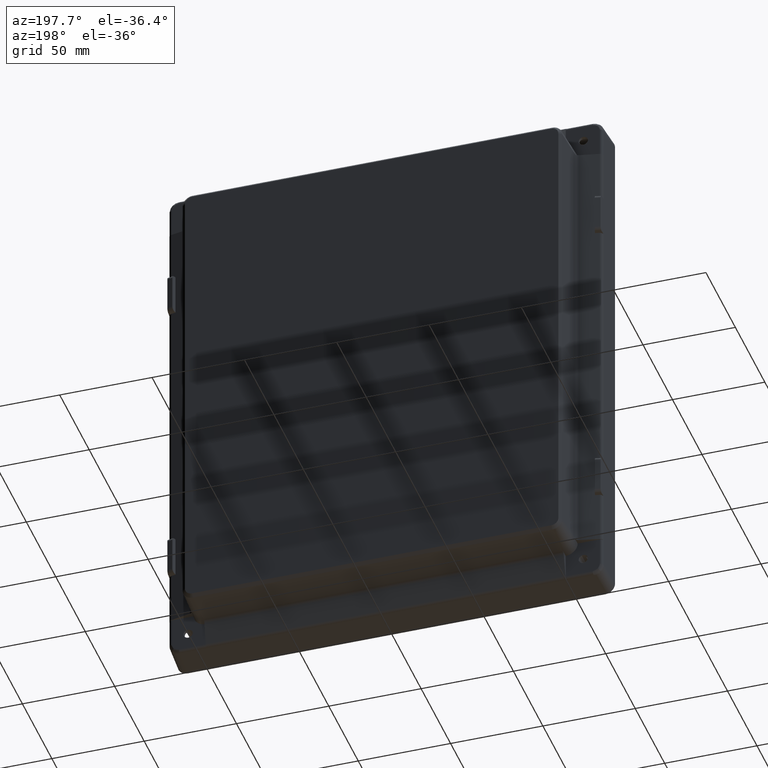
[diagram: clean part render]
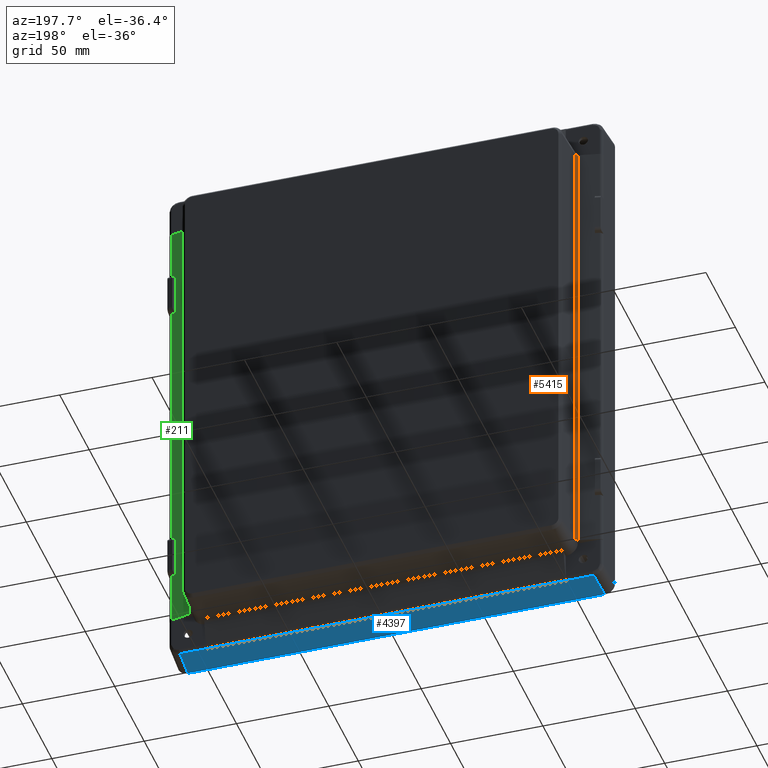
[diagram: same view with three faces highlighted in distinct colors, each labeled with its STEP entity id]
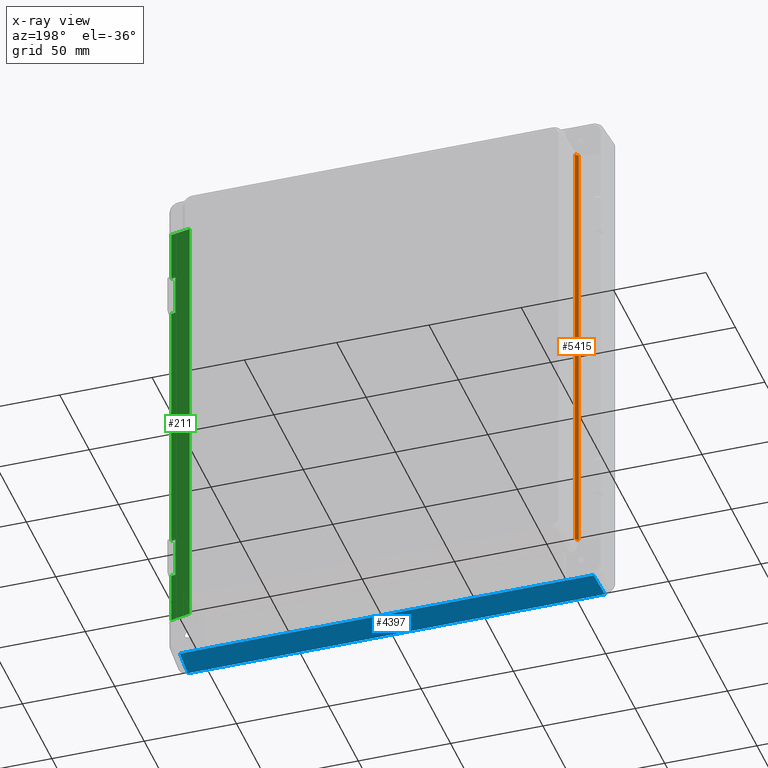
[diagram: x-ray of the same camera — body ghosted, the three highlighted faces saturated]
A machine part, auxiliary view with three faces highlighted in distinct colors.
The next image is the same camera in x-ray (body ghosted, the three faces saturated) — at least one of them is partly hidden behind the body in this view.
Their STEP definitions:

[orange] entity #5415 — the highlighted cylindrical surface (edge-blend (fillet) strip) has radius 2 mm, axis along (0, -0, 1).
#178 = VERTEX_POINT ( 'NONE', #1561 ) ;
#285 = ORIENTED_EDGE ( 'NONE', *, *, #5817, .F. ) ;
#333 = CARTESIAN_POINT ( 'NONE',  ( -105.3249613760728200, 12.58276645524500000, 123.3309053461729000 ) ) ;
#348 = CARTESIAN_POINT ( 'NONE',  ( -103.7927931397431100, 13.49431076706087400, 123.2831333330725000 ) ) ;
#525 = DIRECTION ( 'NONE',  ( -1.048359647488374200E-016, 2.875979223371249300E-017, -1.000000000000000000 ) ) ;
#706 = EDGE_CURVE ( 'NONE', #4485, #178, #888, .T. ) ;
#721 = DIRECTION ( 'NONE',  ( 1.000000000000000000, 0.0000000000000000000, 0.0000000000000000000 ) ) ;
#834 = CARTESIAN_POINT ( 'NONE',  ( -104.4041634585136800, 12.77848809459428600, 123.3206480096969200 ) ) ;
#888 = LINE ( 'NONE', #5679, #956 ) ;
#956 = VECTOR ( 'NONE', #2662, 1000.000000000000000 ) ;
#1227 = EDGE_LOOP ( 'NONE', ( #2887, #4920, #285, #1296 ) ) ;
#1296 = ORIENTED_EDGE ( 'NONE', *, *, #706, .F. ) ;
#1367 = CARTESIAN_POINT ( 'NONE',  ( -105.3249613760728200, 12.58276645524500000, 123.3309053461729000 ) ) ;
#1561 = CARTESIAN_POINT ( 'NONE',  ( -103.7435256881991800, 14.43438974422672600, 123.2338658815286000 ) ) ;
#1596 = AXIS2_PLACEMENT_3D ( 'NONE', #5856, #6327, #721 ) ;
#1649 = LINE ( 'NONE', #5708, #4964 ) ;
#1759 = CARTESIAN_POINT ( 'NONE',  ( -103.7435256881992100, 14.43438974422673300, -123.2338658815285700 ) ) ;
#1894 = FACE_OUTER_BOUND ( 'NONE', #1227, .T. ) ;
#2662 = DIRECTION ( 'NONE',  ( 1.048359647488374200E-016, -2.875979223371249300E-017, 1.000000000000000000 ) ) ;
#2887 = ORIENTED_EDGE ( 'NONE', *, *, #4891, .F. ) ;
#2919 =( BOUNDED_CURVE ( )  B_SPLINE_CURVE ( 3, ( #3158, #5246, #6238, #6734 ),
 .UNSPECIFIED., .F., .F. ) 
 B_SPLINE_CURVE_WITH_KNOTS ( ( 4, 4 ),
 ( 3.351032163829110300, 4.660029102824862200 ),
 .UNSPECIFIED. ) 
 CURVE ( )  GEOMETRIC_REPRESENTATION_ITEM ( )  RATIONAL_B_SPLINE_CURVE ( ( 1.000000000000000000, 0.8622355601941557000, 0.8622355601941557000, 1.000000000000000000 ) ) 
 REPRESENTATION_ITEM ( '' )  );
#3158 = CARTESIAN_POINT ( 'NONE',  ( -105.3249613760728500, 12.58276645524500700, -123.3309053461728700 ) ) ;
#3595 = EDGE_CURVE ( 'NONE', #4754, #3718, #1649, .T. ) ;
#3718 = VERTEX_POINT ( 'NONE', #6208 ) ;
#3943 = CARTESIAN_POINT ( 'NONE',  ( -103.7435256881991800, 14.43438974422672600, 123.2338658815286000 ) ) ;
#4485 = VERTEX_POINT ( 'NONE', #1759 ) ;
#4754 = VERTEX_POINT ( 'NONE', #1367 ) ;
#4891 = EDGE_CURVE ( 'NONE', #3718, #4485, #2919, .T. ) ;
#4920 = ORIENTED_EDGE ( 'NONE', *, *, #3595, .F. ) ;
#4964 = VECTOR ( 'NONE', #525, 1000.000000000000000 ) ;
#5246 = CARTESIAN_POINT ( 'NONE',  ( -104.4041634585137100, 12.77848809459429100, -123.3206480096969500 ) ) ;
#5415 = ADVANCED_FACE ( 'NONE', ( #1894 ), #5952, .F. ) ;
#5679 = CARTESIAN_POINT ( 'NONE',  ( -103.7435256881991800, 14.43438974422672600, 123.3141833783587500 ) ) ;
#5708 = CARTESIAN_POINT ( 'NONE',  ( -105.3249613760728500, 12.58276645524500700, -124.3313808303828300 ) ) ;
#5817 = EDGE_CURVE ( 'NONE', #178, #4754, #6443, .T. ) ;
#5856 = CARTESIAN_POINT ( 'NONE',  ( -105.7407847577083500, 14.53906165671262100, -144.4759222071695300 ) ) ;
#5952 = CYLINDRICAL_SURFACE ( 'NONE', #1596, 2.000000000000001800 ) ;
#6208 = CARTESIAN_POINT ( 'NONE',  ( -105.3249613760728500, 12.58276645524500700, -123.3309053461728700 ) ) ;
#6238 = CARTESIAN_POINT ( 'NONE',  ( -103.7927931397431300, 13.49431076706088300, -123.2831333330725300 ) ) ;
#6327 = DIRECTION ( 'NONE',  ( 1.048359647488374200E-016, -2.875979223371249300E-017, 1.000000000000000000 ) ) ;
#6443 =( BOUNDED_CURVE ( )  B_SPLINE_CURVE ( 3, ( #3943, #348, #834, #333 ),
 .UNSPECIFIED., .F., .F. ) 
 B_SPLINE_CURVE_WITH_KNOTS ( ( 4, 4 ),
 ( 4.764748857944522500, 6.073745796940272600 ),
 .UNSPECIFIED. ) 
 CURVE ( )  GEOMETRIC_REPRESENTATION_ITEM ( )  RATIONAL_B_SPLINE_CURVE ( ( 1.000000000000000000, 0.8622355601941561500, 0.8622355601941561500, 1.000000000000000000 ) ) 
 REPRESENTATION_ITEM ( '' )  );
#6734 = CARTESIAN_POINT ( 'NONE',  ( -103.7435256881992100, 14.43438974422673300, -123.2338658815285700 ) ) ;

[blue] entity #4397 — the highlighted planar face has unit normal (-0, 0.0523, -0.9986).
#102 = EDGE_CURVE ( 'NONE', #966, #6550, #2849, .T. ) ;
#365 = DIRECTION ( 'NONE',  ( 1.000000000000000000, -0.0000000000000000000, -0.0000000000000000000 ) ) ;
#396 = ORIENTED_EDGE ( 'NONE', *, *, #2765, .T. ) ;
#500 = ORIENTED_EDGE ( 'NONE', *, *, #619, .F. ) ;
#619 = EDGE_CURVE ( 'NONE', #966, #4122, #3383, .T. ) ;
#662 = LINE ( 'NONE', #5328, #6022 ) ;
#784 = LINE ( 'NONE', #4703, #3277 ) ;
#966 = VERTEX_POINT ( 'NONE', #2137 ) ;
#984 = VECTOR ( 'NONE', #6736, 1000.000000000000100 ) ;
#1163 = DIRECTION ( 'NONE',  ( 0.0000000000000000000, 0.9986295347545739400, 0.05233595624294396000 ) ) ;
#1166 = CARTESIAN_POINT ( 'NONE',  ( -97.30417699759087200, 8.391026823481111000, -144.5602449182768800 ) ) ;
#1337 = AXIS2_PLACEMENT_3D ( 'NONE', #2236, #4862, #1163 ) ;
#1368 = ORIENTED_EDGE ( 'NONE', *, *, #102, .T. ) ;
#1524 = CARTESIAN_POINT ( 'NONE',  ( 118.0000000000000300, -7.999999999999996400, -145.4192622342642900 ) ) ;
#1565 = LINE ( 'NONE', #6713, #984 ) ;
#1704 = CARTESIAN_POINT ( 'NONE',  ( 98.04499798780402400, -1.042932847418893500, -145.0546577944745100 ) ) ;
#1771 = VECTOR ( 'NONE', #5141, 1000.000000000000000 ) ;
#1837 = VECTOR ( 'NONE', #2276, 1000.000000000000100 ) ;
#1952 = VECTOR ( 'NONE', #365, 1000.000000000000000 ) ;
#2099 = VERTEX_POINT ( 'NONE', #4295 ) ;
#2137 = CARTESIAN_POINT ( 'NONE',  ( -112.9267997931142300, -7.999999999999996400, -145.4192622342642900 ) ) ;
#2236 = CARTESIAN_POINT ( 'NONE',  ( 118.0000000000000300, 0.0000000000000000000, -144.9999999999999700 ) ) ;
#2276 = DIRECTION ( 'NONE',  ( 0.05226442768871403200, -0.9972646886342372300, -0.05226442768871403200 ) ) ;
#2415 = CARTESIAN_POINT ( 'NONE',  ( 118.0000000000000300, 8.391026823481112700, -144.5602449182768800 ) ) ;
#2435 = ORIENTED_EDGE ( 'NONE', *, *, #6676, .T. ) ;
#2583 = EDGE_CURVE ( 'NONE', #2099, #4122, #784, .T. ) ;
#2765 = EDGE_CURVE ( 'NONE', #6550, #2838, #4739, .T. ) ;
#2838 = VERTEX_POINT ( 'NONE', #5842 ) ;
#2849 = LINE ( 'NONE', #5695, #5753 ) ;
#2930 = VERTEX_POINT ( 'NONE', #6655 ) ;
#2936 = EDGE_LOOP ( 'NONE', ( #1368, #396, #6695, #2435, #4581, #4064, #4054, #500 ) ) ;
#3245 = EDGE_CURVE ( 'NONE', #2930, #6590, #5962, .T. ) ;
#3277 = VECTOR ( 'NONE', #5256, 1000.000000000000100 ) ;
#3297 = DIRECTION ( 'NONE',  ( 1.000000000000000000, 0.0000000000000000000, -0.0000000000000000000 ) ) ;
#3383 = LINE ( 'NONE', #1524, #1771 ) ;
#3489 = CARTESIAN_POINT ( 'NONE',  ( 112.9267997931142100, -7.999999999999996400, -145.4192622342642900 ) ) ;
#3646 = EDGE_CURVE ( 'NONE', #2838, #5505, #1565, .T. ) ;
#3921 = EDGE_CURVE ( 'NONE', #6590, #2099, #4710, .T. ) ;
#4054 = ORIENTED_EDGE ( 'NONE', *, *, #2583, .T. ) ;
#4064 = ORIENTED_EDGE ( 'NONE', *, *, #3921, .T. ) ;
#4122 = VERTEX_POINT ( 'NONE', #3489 ) ;
#4295 = CARTESIAN_POINT ( 'NONE',  ( 112.0677824771268000, 8.391026823481109200, -144.5602449182768800 ) ) ;
#4359 = CARTESIAN_POINT ( 'NONE',  ( 97.55058511160638100, 8.391026823481114500, -144.5602449182768800 ) ) ;
#4394 = DIRECTION ( 'NONE',  ( 0.05226442768871404600, 0.9972646886342372300, 0.05226442768871403200 ) ) ;
#4397 = ADVANCED_FACE ( 'NONE', ( #4965 ), #4834, .T. ) ;
#4580 = VECTOR ( 'NONE', #3297, 1000.000000000000000 ) ;
#4581 = ORIENTED_EDGE ( 'NONE', *, *, #3245, .T. ) ;
#4703 = CARTESIAN_POINT ( 'NONE',  ( 112.5225406066861800, -0.2862752064970360800, -145.0150030478362700 ) ) ;
#4710 = LINE ( 'NONE', #2415, #1952 ) ;
#4739 = LINE ( 'NONE', #1166, #4580 ) ;
#4753 = CARTESIAN_POINT ( 'NONE',  ( -112.0677824771268300, 8.391026823481112700, -144.5602449182768800 ) ) ;
#4834 = PLANE ( 'NONE',  #1337 ) ;
#4862 = DIRECTION ( 'NONE',  ( -0.0000000000000000000, 0.05233595624294396000, -0.9986295347545739400 ) ) ;
#4965 = FACE_OUTER_BOUND ( 'NONE', #2936, .T. ) ;
#5141 = DIRECTION ( 'NONE',  ( 1.000000000000000000, -0.0000000000000000000, -0.0000000000000000000 ) ) ;
#5256 = DIRECTION ( 'NONE',  ( 0.05226442768871403900, -0.9972646886342372300, -0.05226442768871403200 ) ) ;
#5328 = CARTESIAN_POINT ( 'NONE',  ( 117.4759222071696300, 8.467449213979877600, -144.5562397905033300 ) ) ;
#5505 = VERTEX_POINT ( 'NONE', #6516 ) ;
#5695 = CARTESIAN_POINT ( 'NONE',  ( -111.8778899919018100, 12.01439129003213000, -144.3703524330518600 ) ) ;
#5753 = VECTOR ( 'NONE', #4394, 1000.000000000000100 ) ;
#5842 = CARTESIAN_POINT ( 'NONE',  ( -97.55058511160638100, 8.391026823481114500, -144.5602449182769100 ) ) ;
#5962 = LINE ( 'NONE', #1704, #1837 ) ;
#6022 = VECTOR ( 'NONE', #6363, 1000.000000000000000 ) ;
#6363 = DIRECTION ( 'NONE',  ( 1.000000000000000000, 0.0000000000000000000, 0.0000000000000000000 ) ) ;
#6516 = CARTESIAN_POINT ( 'NONE',  ( -97.54657998383281400, 8.467449213979877600, -144.5562397905033300 ) ) ;
#6550 = VERTEX_POINT ( 'NONE', #4753 ) ;
#6590 = VERTEX_POINT ( 'NONE', #4359 ) ;
#6655 = CARTESIAN_POINT ( 'NONE',  ( 97.54657998383284200, 8.467449213979877600, -144.5562397905033300 ) ) ;
#6676 = EDGE_CURVE ( 'NONE', #5505, #2930, #662, .T. ) ;
#6695 = ORIENTED_EDGE ( 'NONE', *, *, #3646, .T. ) ;
#6713 = CARTESIAN_POINT ( 'NONE',  ( -97.40034737301962800, 11.25773364911026800, -144.4100071796901300 ) ) ;
#6736 = DIRECTION ( 'NONE',  ( 0.05226442768871403200, 0.9972646886342372300, 0.05226442768871403200 ) ) ;

[green] entity #211 — the highlighted planar face has unit normal (0.2079, 0.9781, 0).
#1 = LINE ( 'NONE', #3686, #1481 ) ;
#2 = LINE ( 'NONE', #4611, #2383 ) ;
#46 = DIRECTION ( 'NONE',  ( 0.2079116908177565900, 0.9781476007338062400, 1.997117778418006400E-017 ) ) ;
#55 = CARTESIAN_POINT ( 'NONE',  ( 117.6998183039548100, 9.952409415495994300, 123.4687565173476400 ) ) ;
#85 = ORIENTED_EDGE ( 'NONE', *, *, #1259, .T. ) ;
#110 = ORIENTED_EDGE ( 'NONE', *, *, #6175, .T. ) ;
#211 = ADVANCED_FACE ( 'NONE', ( #3975 ), #1004, .T. ) ;
#227 = LINE ( 'NONE', #4012, #2737 ) ;
#266 = VECTOR ( 'NONE', #1234, 1000.000000000000000 ) ;
#313 = DIRECTION ( 'NONE',  ( 0.9781476007338061300, -0.2079116908177565700, -4.690181115350722000E-017 ) ) ;
#338 = ORIENTED_EDGE ( 'NONE', *, *, #3206, .T. ) ;
#467 = VERTEX_POINT ( 'NONE', #2644 ) ;
#540 = DIRECTION ( 'NONE',  ( -0.9781476007338061300, 0.2079116908177565700, 4.690181115350722000E-017 ) ) ;
#583 = DIRECTION ( 'NONE',  ( 9.570497043318010100E-017, 7.462632602628201200E-020, -1.000000000000000000 ) ) ;
#626 = LINE ( 'NONE', #2379, #2664 ) ;
#700 = CARTESIAN_POINT ( 'NONE',  ( 115.9748041026297800, 10.31907250296160300, -138.9662624004988300 ) ) ;
#848 = EDGE_CURVE ( 'NONE', #467, #5218, #227, .T. ) ;
#965 = EDGE_CURVE ( 'NONE', #4361, #4082, #3064, .T. ) ;
#1004 = PLANE ( 'NONE',  #4872 ) ;
#1014 = CARTESIAN_POINT ( 'NONE',  ( 105.3249613760728800, 12.58276645524499700, 123.3309053461728800 ) ) ;
#1234 = DIRECTION ( 'NONE',  ( 0.9780895396599574900, -0.2078993495555324100, 0.01089554322459419800 ) ) ;
#1259 = EDGE_CURVE ( 'NONE', #1668, #4053, #626, .T. ) ;
#1357 = LINE ( 'NONE', #5242, #5241 ) ;
#1481 = VECTOR ( 'NONE', #583, 1000.000000000000000 ) ;
#1577 = VECTOR ( 'NONE', #6049, 1000.000000000000100 ) ;
#1668 = VERTEX_POINT ( 'NONE', #5277 ) ;
#1889 = LINE ( 'NONE', #6027, #1577 ) ;
#1936 = ORIENTED_EDGE ( 'NONE', *, *, #848, .T. ) ;
#2021 = CARTESIAN_POINT ( 'NONE',  ( 115.9748041026297800, 10.31907250296160500, -123.4495405191884900 ) ) ;
#2031 = DIRECTION ( 'NONE',  ( -5.176014711946663600E-018, -1.931714988570907100E-017, 1.000000000000000000 ) ) ;
#2071 = DIRECTION ( 'NONE',  ( 1.086232507946712800E-016, -4.350593048236939000E-017, 1.000000000000000000 ) ) ;
#2094 = VERTEX_POINT ( 'NONE', #5441 ) ;
#2162 = CARTESIAN_POINT ( 'NONE',  ( 113.6014101951865200, 10.82355295141631400, -72.79277666215089900 ) ) ;
#2214 = VECTOR ( 'NONE', #313, 1000.000000000000100 ) ;
#2379 = CARTESIAN_POINT ( 'NONE',  ( 117.4759222071696000, 9.999999999999998200, 72.79277666215089900 ) ) ;
#2383 = VECTOR ( 'NONE', #2031, 1000.000000000000000 ) ;
#2644 = CARTESIAN_POINT ( 'NONE',  ( 105.3249613760728500, 12.58276645524500700, -123.3309053461728800 ) ) ;
#2664 = VECTOR ( 'NONE', #5898, 1000.000000000000100 ) ;
#2737 = VECTOR ( 'NONE', #2071, 1000.000000000000000 ) ;
#2907 = CARTESIAN_POINT ( 'NONE',  ( 117.4759222071696000, 10.00000000000000000, 95.20722333784914300 ) ) ;
#3043 = EDGE_CURVE ( 'NONE', #2094, #5347, #1357, .T. ) ;
#3064 = LINE ( 'NONE', #5220, #5578 ) ;
#3117 = VERTEX_POINT ( 'NONE', #6270 ) ;
#3206 = EDGE_CURVE ( 'NONE', #5766, #1668, #6600, .T. ) ;
#3439 = VECTOR ( 'NONE', #6406, 1000.000000000000000 ) ;
#3501 = LINE ( 'NONE', #700, #4076 ) ;
#3566 = EDGE_CURVE ( 'NONE', #4053, #2094, #1, .T. ) ;
#3606 = EDGE_CURVE ( 'NONE', #5218, #4361, #6501, .T. ) ;
#3682 = DIRECTION ( 'NONE',  ( -0.9781476007338061300, 0.2079116908177565700, 0.0000000000000000000 ) ) ;
#3686 = CARTESIAN_POINT ( 'NONE',  ( 115.9748041026297800, 10.31907250296160300, -72.79277666215089900 ) ) ;
#3740 = CARTESIAN_POINT ( 'NONE',  ( 113.6014101951865200, 10.82355295141631000, 144.4759222071695600 ) ) ;
#3910 = CARTESIAN_POINT ( 'NONE',  ( 115.9748041026297800, 10.31907250296160300, -95.20722333784911500 ) ) ;
#3918 = CARTESIAN_POINT ( 'NONE',  ( 113.6014101951865200, 10.82355295141631200, 95.20722333784912900 ) ) ;
#3940 = LINE ( 'NONE', #2907, #2214 ) ;
#3975 = FACE_OUTER_BOUND ( 'NONE', #6593, .T. ) ;
#3987 = ORIENTED_EDGE ( 'NONE', *, *, #3606, .T. ) ;
#3997 = CARTESIAN_POINT ( 'NONE',  ( 114.6205114175710700, 10.60693629959254200, -123.4344542168710700 ) ) ;
#4000 = ORIENTED_EDGE ( 'NONE', *, *, #965, .T. ) ;
#4012 = CARTESIAN_POINT ( 'NONE',  ( 105.3249613760728800, 12.58276645524499700, 123.3141833783587800 ) ) ;
#4053 = VERTEX_POINT ( 'NONE', #5125 ) ;
#4072 = EDGE_CURVE ( 'NONE', #3117, #5347, #2, .T. ) ;
#4076 = VECTOR ( 'NONE', #4423, 1000.000000000000000 ) ;
#4082 = VERTEX_POINT ( 'NONE', #4169 ) ;
#4123 = ORIENTED_EDGE ( 'NONE', *, *, #6346, .F. ) ;
#4169 = CARTESIAN_POINT ( 'NONE',  ( 115.9748041026297500, 10.31907250296160700, 95.20722333784914300 ) ) ;
#4189 = ORIENTED_EDGE ( 'NONE', *, *, #5595, .F. ) ;
#4318 = VECTOR ( 'NONE', #4466, 1000.000000000000000 ) ;
#4361 = VERTEX_POINT ( 'NONE', #4708 ) ;
#4423 = DIRECTION ( 'NONE',  ( 9.570497043318010100E-017, 7.462632602628201200E-020, -1.000000000000000000 ) ) ;
#4466 = DIRECTION ( 'NONE',  ( 0.9780895396599574900, -0.2078993495555324100, -0.01089554322459419800 ) ) ;
#4611 = CARTESIAN_POINT ( 'NONE',  ( 113.6014101951865200, 10.82355295141631000, 144.4759222071695600 ) ) ;
#4708 = CARTESIAN_POINT ( 'NONE',  ( 115.9748041026297500, 10.31907250296160500, 123.4495405191885000 ) ) ;
#4799 = ORIENTED_EDGE ( 'NONE', *, *, #4072, .F. ) ;
#4857 = VERTEX_POINT ( 'NONE', #2021 ) ;
#4872 = AXIS2_PLACEMENT_3D ( 'NONE', #5737, #46, #3682 ) ;
#5125 = CARTESIAN_POINT ( 'NONE',  ( 115.9748041026297600, 10.31907250296160200, 72.79277666215089900 ) ) ;
#5218 = VERTEX_POINT ( 'NONE', #1014 ) ;
#5220 = CARTESIAN_POINT ( 'NONE',  ( 115.9748041026297500, 10.31907250296160500, 95.20722333784914300 ) ) ;
#5221 = LINE ( 'NONE', #3997, #4318 ) ;
#5241 = VECTOR ( 'NONE', #540, 1000.000000000000100 ) ;
#5242 = CARTESIAN_POINT ( 'NONE',  ( 117.4759222071695900, 10.00000000000000500, -72.79277666215089900 ) ) ;
#5277 = CARTESIAN_POINT ( 'NONE',  ( 113.6014101951865200, 10.82355295141631200, 72.79277666215089900 ) ) ;
#5346 = ORIENTED_EDGE ( 'NONE', *, *, #3043, .T. ) ;
#5347 = VERTEX_POINT ( 'NONE', #2162 ) ;
#5430 = ORIENTED_EDGE ( 'NONE', *, *, #6328, .F. ) ;
#5441 = CARTESIAN_POINT ( 'NONE',  ( 115.9748041026297800, 10.31907250296160200, -72.79277666215089900 ) ) ;
#5578 = VECTOR ( 'NONE', #6739, 1000.000000000000000 ) ;
#5595 = EDGE_CURVE ( 'NONE', #5766, #4082, #3940, .T. ) ;
#5737 = CARTESIAN_POINT ( 'NONE',  ( 117.4759222071696000, 9.999999999999998200, 144.4759222071695600 ) ) ;
#5766 = VERTEX_POINT ( 'NONE', #3918 ) ;
#5898 = DIRECTION ( 'NONE',  ( 0.9781476007338061300, -0.2079116908177565700, 4.690181115350722000E-017 ) ) ;
#6027 = CARTESIAN_POINT ( 'NONE',  ( 117.4759222071696200, 10.00000000000000000, -95.20722333784911500 ) ) ;
#6049 = DIRECTION ( 'NONE',  ( -0.9781476007338061300, 0.2079116908177565700, -4.690181115350722000E-017 ) ) ;
#6069 = ORIENTED_EDGE ( 'NONE', *, *, #3566, .T. ) ;
#6175 = EDGE_CURVE ( 'NONE', #6200, #4857, #3501, .T. ) ;
#6200 = VERTEX_POINT ( 'NONE', #3910 ) ;
#6270 = CARTESIAN_POINT ( 'NONE',  ( 113.6014101951865200, 10.82355295141631600, -95.20722333784912900 ) ) ;
#6328 = EDGE_CURVE ( 'NONE', #467, #4857, #5221, .T. ) ;
#6346 = EDGE_CURVE ( 'NONE', #6200, #3117, #1889, .T. ) ;
#6406 = DIRECTION ( 'NONE',  ( 5.176014711946663600E-018, 1.931714988570907100E-017, -1.000000000000000000 ) ) ;
#6501 = LINE ( 'NONE', #55, #266 ) ;
#6593 = EDGE_LOOP ( 'NONE', ( #4123, #110, #5430, #1936, #3987, #4000, #4189, #338, #85, #6069, #5346, #4799 ) ) ;
#6600 = LINE ( 'NONE', #3740, #3439 ) ;
#6739 = DIRECTION ( 'NONE',  ( 9.570497043318010100E-017, 7.462632602628201200E-020, -1.000000000000000000 ) ) ;